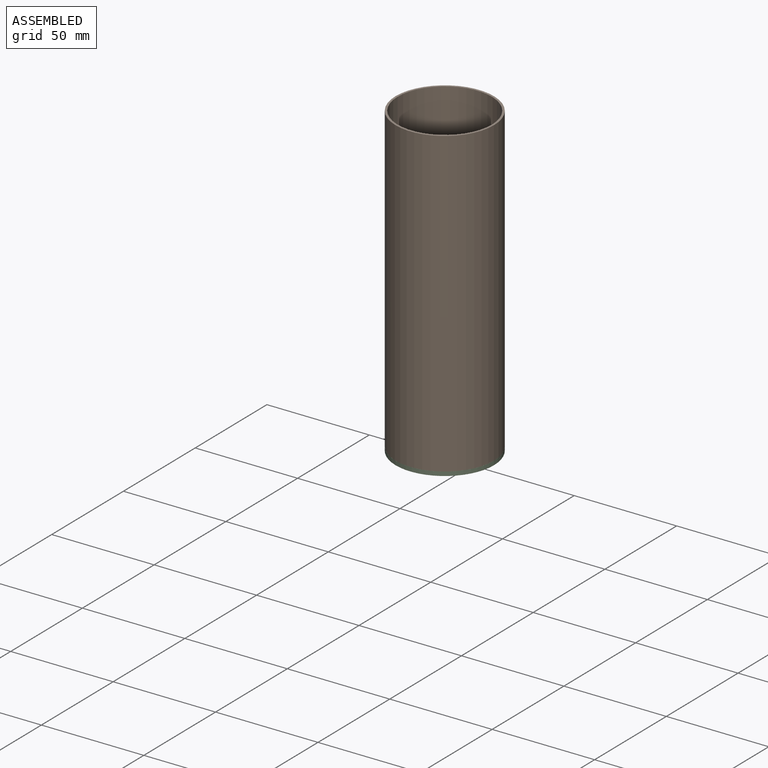
[diagram: assembled view]
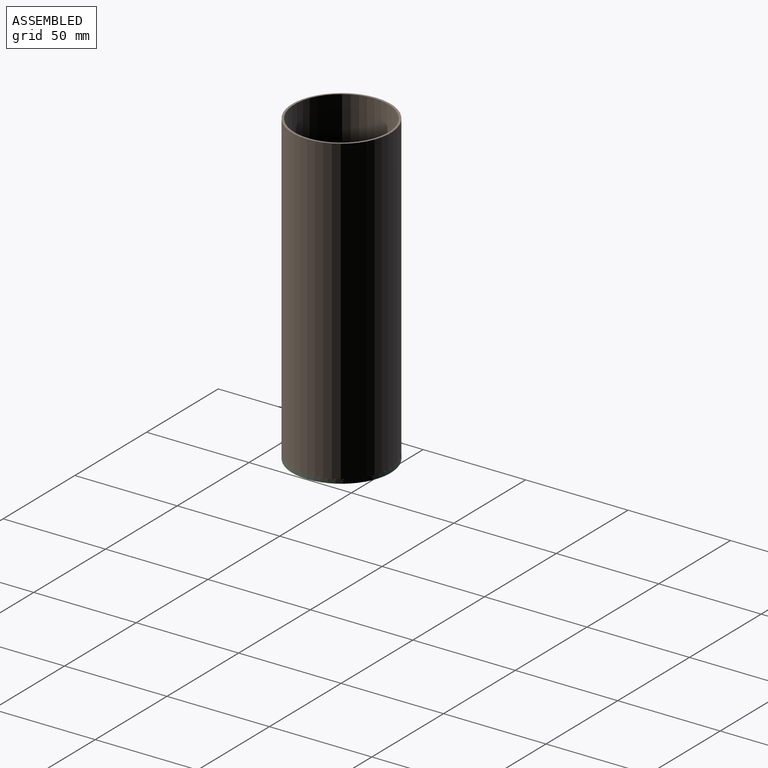
[diagram: assembled view, second angle]
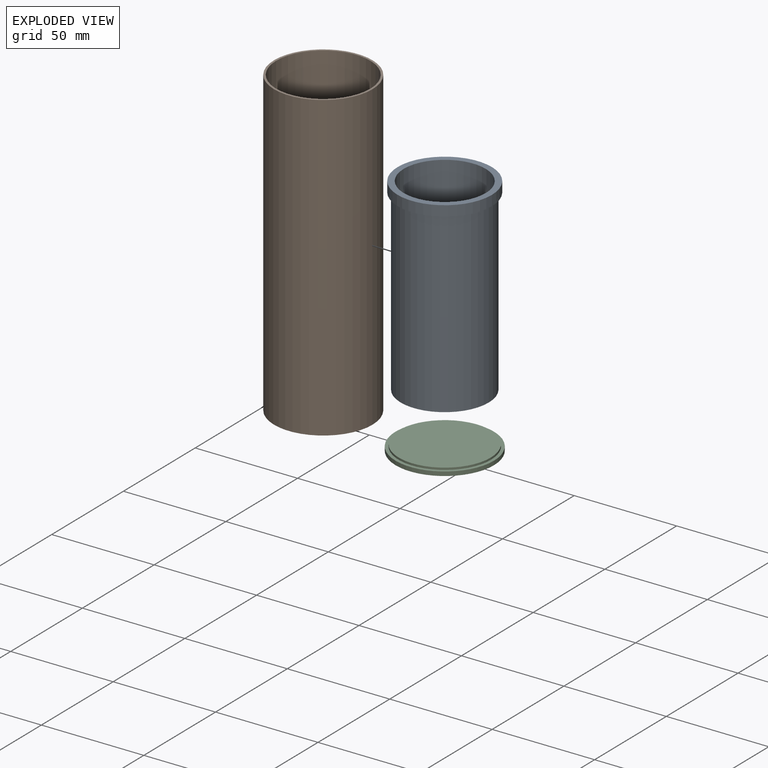
[diagram: exploded view]
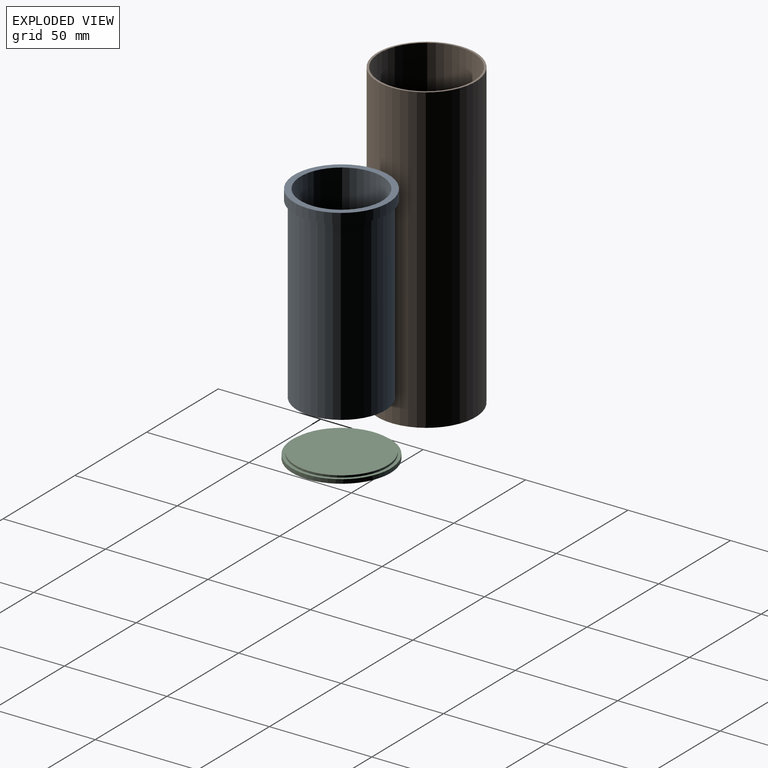
[diagram: exploded view, second angle]
ASSEMBLY  parts=3 mates=2
PART A: 7 faces, bbox 46x46x92 mm
  f0: cylinder r=21.5mm len=87mm, axis (0,0,-1), area 11752.7mm2, adj f1,f4
  f1: plane 43x43mm, normal (0,0,-1), area 1452.2mm2, adj f0
  f2: cylinder r=23mm len=46mm, axis (0,0,-1), area 722.6mm2, adj f3,f4
  f3: plane 46x46mm, normal (0,0,1), area 405.3mm2, adj f2,f5
  f4: plane 46x46mm, normal (0,0,-1), area 209.7mm2, adj f0,f2
  f5: cylinder r=20mm len=89mm, axis (0,0,1), area 11184.1mm2, adj f3,f6
  f6: plane 40x40mm, normal (0,0,1), area 1256.6mm2, adj f5
PART B: 6 faces, bbox 48x48x148 mm
  f0: cylinder r=22.5mm len=89mm, axis (0,0,-1), area 12582.1mm2, adj f3,f5
  f1: cylinder r=24mm len=148mm, axis (0,0,-1), area 22317.9mm2, adj f2,f3
  f2: plane 48x48mm, normal (0,0,1), area 147.7mm2, adj f1,f4
  f3: plane 48x48mm, normal (0,0,-1), area 219.1mm2, adj f0,f1
  f4: cylinder r=23mm len=59mm, axis (0,0,1), area 8526.3mm2, adj f2,f5
  f5: plane 46x46mm, normal (0,0,1), area 71.5mm2, adj f0,f4
PART C: 5 faces, bbox 48x48x3 mm
  f0: cylinder r=24mm len=48mm, axis (0,0,-1), area 301.6mm2, adj f1,f2
  f1: plane 48x48mm, normal (0,0,1), area 219.1mm2, adj f0,f3
  f2: plane 48x48mm, normal (0,0,-1), area 1809.6mm2, adj f0
  f3: cylinder r=22.5mm len=45mm, axis (0,0,-1), area 141.4mm2, adj f1,f4
  f4: plane 45x45mm, normal (0,0,1), area 1590.4mm2, adj f3
PLACE A t=(-32.06,12.75,-10.1)mm
PLACE B t=(-32.06,12.75,-12.1)mm
PLACE C t=(-32.06,12.75,-14.1)mm
MATE fastened C.f0 <-> B.f0  axis (0,0,1) through (-32.06,12.75,-12.1)mm
MATE fastened B.f0 <-> A.f0  axis (0,0,1) through (-32.06,12.75,76.9)mm
